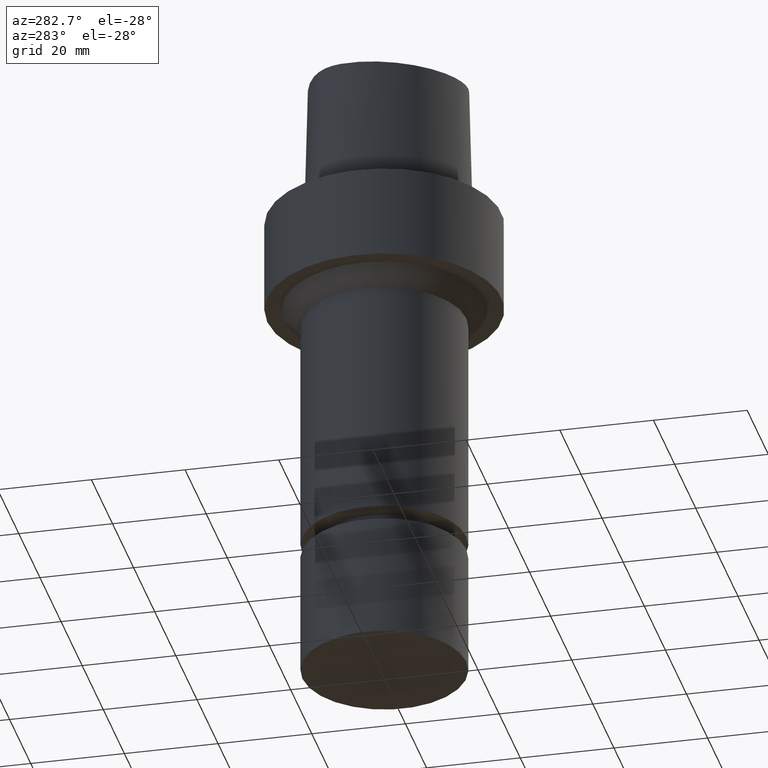
[diagram: clean part render]
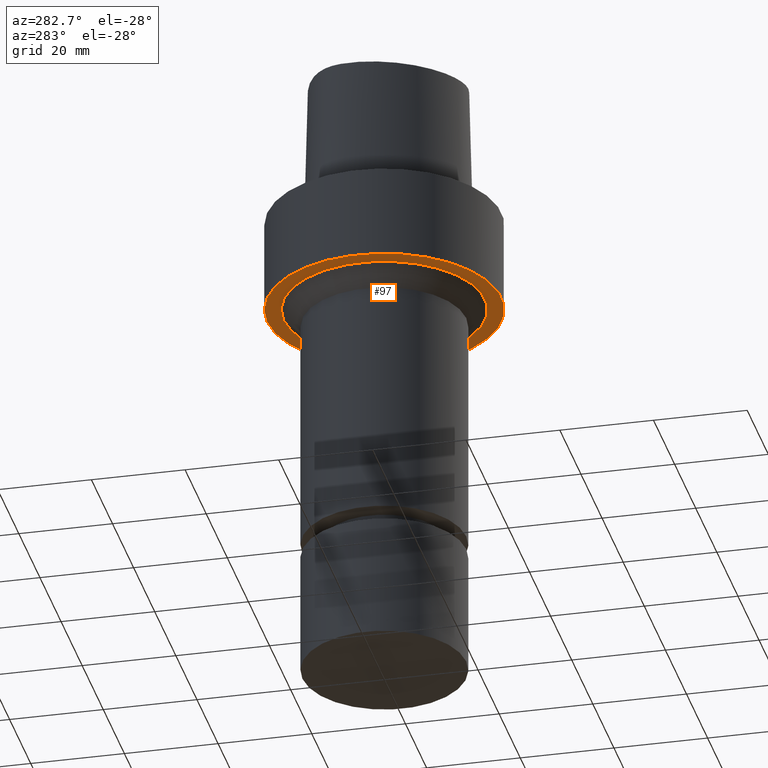
[diagram: same view with one face highlighted and labeled with its STEP entity id]
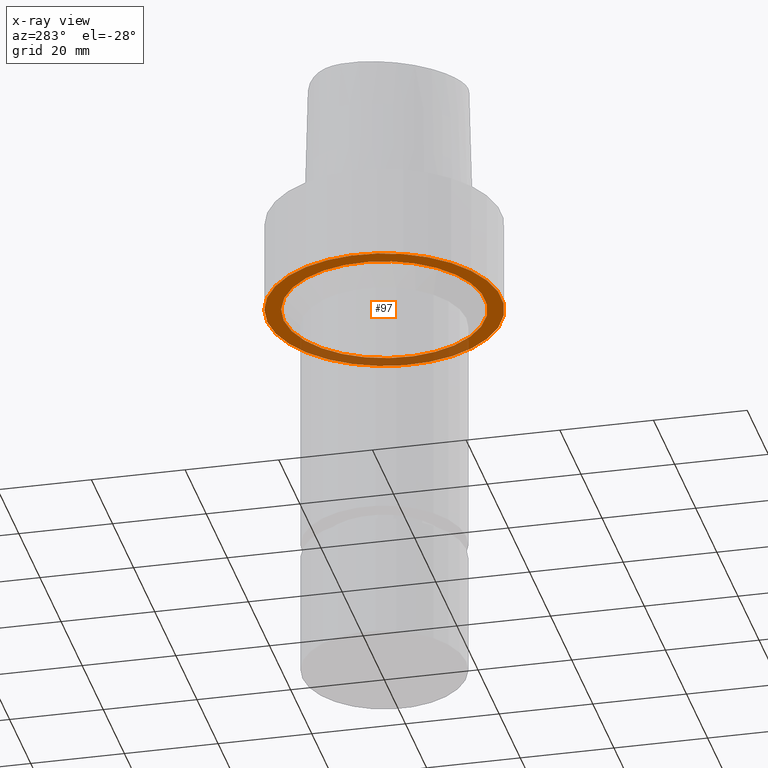
[diagram: x-ray of the same camera — body ghosted, the highlighted face saturated]
A machine part, auxiliary view. The second image highlights one B-rep face of the part: STEP entity #97.
The next image is the same camera in x-ray: the body ghosted, the highlighted face saturated — about 27% of this face is hidden behind the body in this view.
In plain terms, the highlighted planar face has unit normal (0, 0, -1).
Its self-contained STEP definition (entity closure, byte-faithful):
#75=EDGE_CURVE('Unnamed[1]',#183,#183,#184,.T.);
#97=ADVANCED_FACE('Unnamed[1]',(#215,#216),#217,.T.);
#140=EDGE_CURVE('Unnamed[1]',#280,#280,#281,.T.);
#183=VERTEX_POINT('',#467);
#184=CIRCLE('',#468,25.0);
#215=FACE_BOUND('',#891,.T.);
#216=FACE_OUTER_BOUND('',#892,.T.);
#217=PLANE('',#893);
#280=VERTEX_POINT('',#974);
#281=CIRCLE('',#975,21.4999999999997);
#467=CARTESIAN_POINT('',(1.22464679914735E-015,25.0,-20.0));
#468=AXIS2_PLACEMENT_3D('',#999,#1000,#1001);
#891=EDGE_LOOP('',(#1034));
#892=EDGE_LOOP('',(#1035));
#893=AXIS2_PLACEMENT_3D('',#1036,#1037,#1038);
#974=CARTESIAN_POINT('',(1.22464679914735E-015,21.4999999999997,-20.0));
#975=AXIS2_PLACEMENT_3D('',#1106,#1107,#1108);
#999=CARTESIAN_POINT('',(1.22464679914735E-015,2.44929359829471E-015,-20.0));
#1000=DIRECTION('',(6.12323399573677E-017,1.22464679914735E-016,-1.0));
#1001=DIRECTION('',(-1.23259516440783E-032,1.0,1.22464679914735E-016));
#1034=ORIENTED_EDGE('',*,*,#140,.F.);
#1035=ORIENTED_EDGE('',*,*,#75,.T.);
#1036=CARTESIAN_POINT('',(1.22464679914735E-015,23.2499999999998,-20.0));
#1037=DIRECTION('',(6.12323399573677E-017,1.22464679914735E-016,-1.0));
#1038=DIRECTION('',(-1.23259516440783E-032,1.0,1.22464679914735E-016));
#1106=CARTESIAN_POINT('',(1.22464679914735E-015,2.44929359829471E-015,-20.0));
#1107=DIRECTION('',(6.12323399573677E-017,1.22464679914735E-016,-1.0));
#1108=DIRECTION('',(-1.23259516440783E-032,1.0,1.22464679914735E-016));